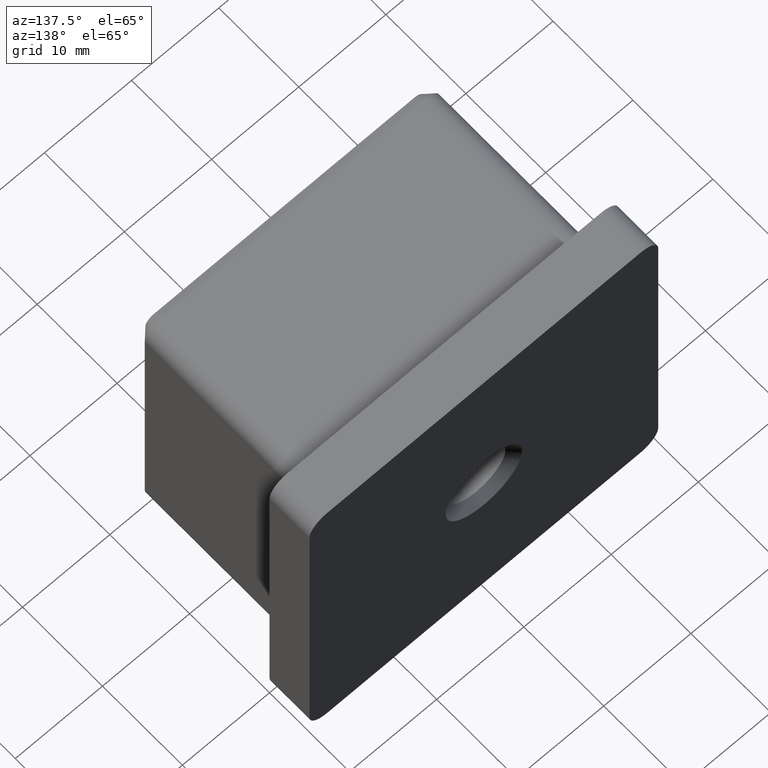
[diagram: clean part render]
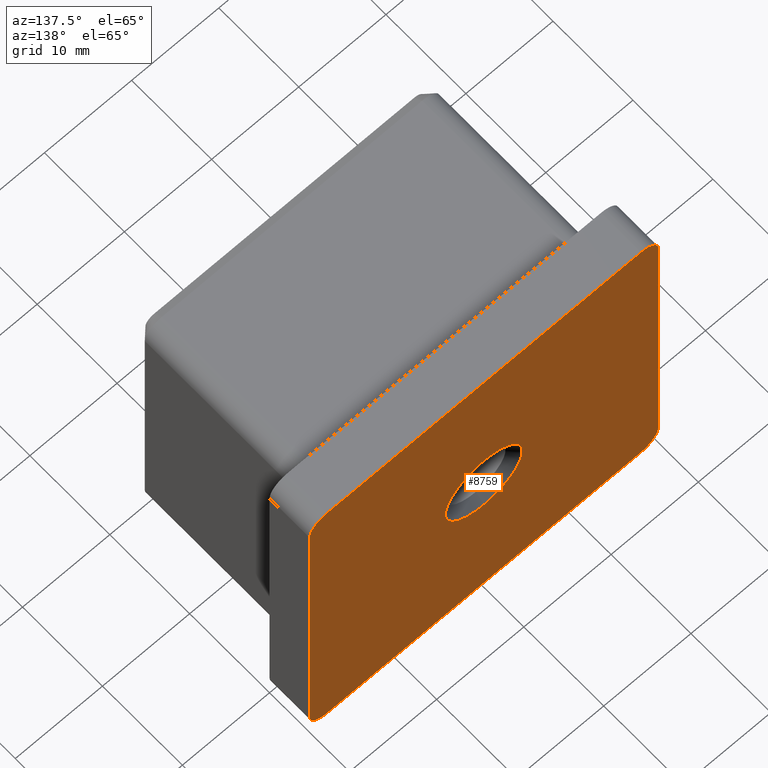
[diagram: same view with one face highlighted and labeled with its STEP entity id]
A machine part, auxiliary view. The second image highlights one B-rep face of the part: STEP entity #8759.
In plain terms, the highlighted planar face has unit normal (0, 1, 0).
Its self-contained STEP definition (entity closure, byte-faithful):
#21 = EDGE_CURVE ( 'NONE', #207, #4793, #13595, .T. ) ;
#100 = ORIENTED_EDGE ( 'NONE', *, *, #6818, .T. ) ;
#115 = ORIENTED_EDGE ( 'NONE', *, *, #9267, .T. ) ;
#161 = DIRECTION ( 'NONE',  ( 0.0000000000000000000, 1.000000000000000000, 0.0000000000000000000 ) ) ;
#207 = VERTEX_POINT ( 'NONE', #208 ) ;
#208 = CARTESIAN_POINT ( 'NONE',  ( -20.00000000000000000, 5.000000000000000000, 17.99999999999999600 ) ) ;
#325 = FACE_BOUND ( 'NONE', #496, .T. ) ;
#496 = EDGE_LOOP ( 'NONE', ( #14694, #9841 ) ) ;
#991 = VECTOR ( 'NONE', #1122, 1000.000000000000000 ) ;
#1064 = VECTOR ( 'NONE', #16902, 1000.000000000000000 ) ;
#1122 = DIRECTION ( 'NONE',  ( -1.000000000000000000, -0.0000000000000000000, -0.0000000000000000000 ) ) ;
#1161 = VERTEX_POINT ( 'NONE', #16885 ) ;
#1314 = AXIS2_PLACEMENT_3D ( 'NONE', #15731, #161, #12701 ) ;
#1362 = VERTEX_POINT ( 'NONE', #10700 ) ;
#1586 = LINE ( 'NONE', #17510, #6667 ) ;
#1675 = VERTEX_POINT ( 'NONE', #15812 ) ;
#1820 = DIRECTION ( 'NONE',  ( 0.0000000000000000000, 0.0000000000000000000, 1.000000000000000000 ) ) ;
#2185 = AXIS2_PLACEMENT_3D ( 'NONE', #3296, #10265, #1820 ) ;
#2248 = CARTESIAN_POINT ( 'NONE',  ( 18.00000000000000000, 5.000000000000000000, 19.99999999999999600 ) ) ;
#2577 = DIRECTION ( 'NONE',  ( -0.0000000000000000000, -1.000000000000000000, -0.0000000000000000000 ) ) ;
#2779 = AXIS2_PLACEMENT_3D ( 'NONE', #15357, #16706, #18219 ) ;
#3296 = CARTESIAN_POINT ( 'NONE',  ( -18.00000000000000400, 5.000000000000000000, -17.99999999999999600 ) ) ;
#3580 = CARTESIAN_POINT ( 'NONE',  ( 17.99999999999999600, 5.000000000000000000, -19.99999999999999600 ) ) ;
#3699 = CARTESIAN_POINT ( 'NONE',  ( 17.99999999999999600, 5.000000000000000000, -17.99999999999999600 ) ) ;
#3708 = VERTEX_POINT ( 'NONE', #14999 ) ;
#4064 = CARTESIAN_POINT ( 'NONE',  ( -18.00000000000000000, 5.000000000000000000, 19.99999999999999600 ) ) ;
#4618 = EDGE_CURVE ( 'NONE', #1675, #12528, #16086, .T. ) ;
#4793 = VERTEX_POINT ( 'NONE', #4064 ) ;
#4926 = DIRECTION ( 'NONE',  ( -8.673617379884036700E-017, -0.0000000000000000000, -1.000000000000000000 ) ) ;
#5455 = CIRCLE ( 'NONE', #2185, 2.000000000000001800 ) ;
#5464 = CARTESIAN_POINT ( 'NONE',  ( 2.449293598294707400E-016, 5.000000000000000000, 0.0000000000000000000 ) ) ;
#5476 = VECTOR ( 'NONE', #6467, 1000.000000000000000 ) ;
#5570 = EDGE_CURVE ( 'NONE', #13418, #1161, #17357, .T. ) ;
#5703 = EDGE_LOOP ( 'NONE', ( #18233, #8824, #115, #13664, #7062, #8091, #10891, #100 ) ) ;
#6467 = DIRECTION ( 'NONE',  ( 1.000000000000000000, 0.0000000000000000000, 0.0000000000000000000 ) ) ;
#6549 = EDGE_CURVE ( 'NONE', #1161, #13418, #11845, .T. ) ;
#6667 = VECTOR ( 'NONE', #4926, 1000.000000000000000 ) ;
#6818 = EDGE_CURVE ( 'NONE', #14329, #7269, #11169, .T. ) ;
#6825 = CARTESIAN_POINT ( 'NONE',  ( 18.00000000000000000, 5.000000000000000000, 17.99999999999999600 ) ) ;
#6870 = CARTESIAN_POINT ( 'NONE',  ( -20.00000000000000400, 5.000000000000000000, -19.99999999999999600 ) ) ;
#7062 = ORIENTED_EDGE ( 'NONE', *, *, #11756, .T. ) ;
#7269 = VERTEX_POINT ( 'NONE', #10919 ) ;
#7384 = DIRECTION ( 'NONE',  ( -0.0000000000000000000, -1.000000000000000000, -0.0000000000000000000 ) ) ;
#7709 = CARTESIAN_POINT ( 'NONE',  ( 2.449293598294707400E-016, 5.000000000000000000, 4.399999999999979000 ) ) ;
#8091 = ORIENTED_EDGE ( 'NONE', *, *, #21, .T. ) ;
#8249 = DIRECTION ( 'NONE',  ( 0.0000000000000000000, 0.0000000000000000000, 1.000000000000000000 ) ) ;
#8357 = LINE ( 'NONE', #12655, #1064 ) ;
#8759 = ADVANCED_FACE ( 'NONE', ( #325, #14927 ), #14136, .T. ) ;
#8824 = ORIENTED_EDGE ( 'NONE', *, *, #4618, .T. ) ;
#9240 = LINE ( 'NONE', #12039, #5476 ) ;
#9267 = EDGE_CURVE ( 'NONE', #12528, #1362, #16889, .T. ) ;
#9661 = DIRECTION ( 'NONE',  ( 0.0000000000000000000, 1.000000000000000000, 0.0000000000000000000 ) ) ;
#9841 = ORIENTED_EDGE ( 'NONE', *, *, #6549, .T. ) ;
#10265 = DIRECTION ( 'NONE',  ( 0.0000000000000000000, 1.000000000000000000, 0.0000000000000000000 ) ) ;
#10570 = AXIS2_PLACEMENT_3D ( 'NONE', #3699, #10863, #10802 ) ;
#10700 = CARTESIAN_POINT ( 'NONE',  ( -18.00000000000000400, 5.000000000000000000, -19.99999999999999600 ) ) ;
#10802 = DIRECTION ( 'NONE',  ( 0.0000000000000000000, 0.0000000000000000000, 1.000000000000000000 ) ) ;
#10863 = DIRECTION ( 'NONE',  ( 0.0000000000000000000, 1.000000000000000000, 0.0000000000000000000 ) ) ;
#10891 = ORIENTED_EDGE ( 'NONE', *, *, #12436, .T. ) ;
#10919 = CARTESIAN_POINT ( 'NONE',  ( 20.00000000000000000, 5.000000000000000000, 17.99999999999999600 ) ) ;
#11169 = CIRCLE ( 'NONE', #14194, 2.000000000000001800 ) ;
#11756 = EDGE_CURVE ( 'NONE', #3708, #207, #8357, .T. ) ;
#11845 = CIRCLE ( 'NONE', #12189, 4.399999999999979000 ) ;
#12039 = CARTESIAN_POINT ( 'NONE',  ( -20.00000000000000000, 5.000000000000000000, 19.99999999999999600 ) ) ;
#12189 = AXIS2_PLACEMENT_3D ( 'NONE', #13068, #7384, #15853 ) ;
#12436 = EDGE_CURVE ( 'NONE', #4793, #14329, #9240, .T. ) ;
#12528 = VERTEX_POINT ( 'NONE', #3580 ) ;
#12655 = CARTESIAN_POINT ( 'NONE',  ( -20.00000000000000400, 5.000000000000000000, -19.99999999999999600 ) ) ;
#12701 = DIRECTION ( 'NONE',  ( 0.0000000000000000000, -0.0000000000000000000, 1.000000000000000000 ) ) ;
#13068 = CARTESIAN_POINT ( 'NONE',  ( 2.449293598294707400E-016, 5.000000000000000000, 0.0000000000000000000 ) ) ;
#13255 = EDGE_CURVE ( 'NONE', #1362, #3708, #5455, .T. ) ;
#13418 = VERTEX_POINT ( 'NONE', #7709 ) ;
#13595 = CIRCLE ( 'NONE', #2779, 2.000000000000001800 ) ;
#13664 = ORIENTED_EDGE ( 'NONE', *, *, #13255, .T. ) ;
#14136 = PLANE ( 'NONE',  #1314 ) ;
#14194 = AXIS2_PLACEMENT_3D ( 'NONE', #6825, #9661, #8249 ) ;
#14329 = VERTEX_POINT ( 'NONE', #2248 ) ;
#14694 = ORIENTED_EDGE ( 'NONE', *, *, #5570, .T. ) ;
#14927 = FACE_OUTER_BOUND ( 'NONE', #5703, .T. ) ;
#14999 = CARTESIAN_POINT ( 'NONE',  ( -20.00000000000000400, 5.000000000000000000, -17.99999999999999600 ) ) ;
#15357 = CARTESIAN_POINT ( 'NONE',  ( -18.00000000000000000, 5.000000000000000000, 17.99999999999999600 ) ) ;
#15731 = CARTESIAN_POINT ( 'NONE',  ( 0.0000000000000000000, 5.000000000000000000, 0.0000000000000000000 ) ) ;
#15812 = CARTESIAN_POINT ( 'NONE',  ( 19.99999999999999600, 5.000000000000000000, -17.99999999999999600 ) ) ;
#15853 = DIRECTION ( 'NONE',  ( 0.0000000000000000000, 0.0000000000000000000, 1.000000000000000000 ) ) ;
#16040 = EDGE_CURVE ( 'NONE', #7269, #1675, #1586, .T. ) ;
#16086 = CIRCLE ( 'NONE', #10570, 2.000000000000001800 ) ;
#16700 = DIRECTION ( 'NONE',  ( 0.0000000000000000000, 0.0000000000000000000, 1.000000000000000000 ) ) ;
#16706 = DIRECTION ( 'NONE',  ( 0.0000000000000000000, 1.000000000000000000, 0.0000000000000000000 ) ) ;
#16885 = CARTESIAN_POINT ( 'NONE',  ( 7.837739514543038200E-016, 5.000000000000000000, -4.399999999999979000 ) ) ;
#16889 = LINE ( 'NONE', #6870, #991 ) ;
#16902 = DIRECTION ( 'NONE',  ( 8.673617379884036700E-017, 0.0000000000000000000, 1.000000000000000000 ) ) ;
#17357 = CIRCLE ( 'NONE', #17524, 4.399999999999979000 ) ;
#17510 = CARTESIAN_POINT ( 'NONE',  ( 19.99999999999999600, 5.000000000000000000, -19.99999999999999600 ) ) ;
#17524 = AXIS2_PLACEMENT_3D ( 'NONE', #5464, #2577, #16700 ) ;
#18219 = DIRECTION ( 'NONE',  ( 0.0000000000000000000, 0.0000000000000000000, 1.000000000000000000 ) ) ;
#18233 = ORIENTED_EDGE ( 'NONE', *, *, #16040, .T. ) ;